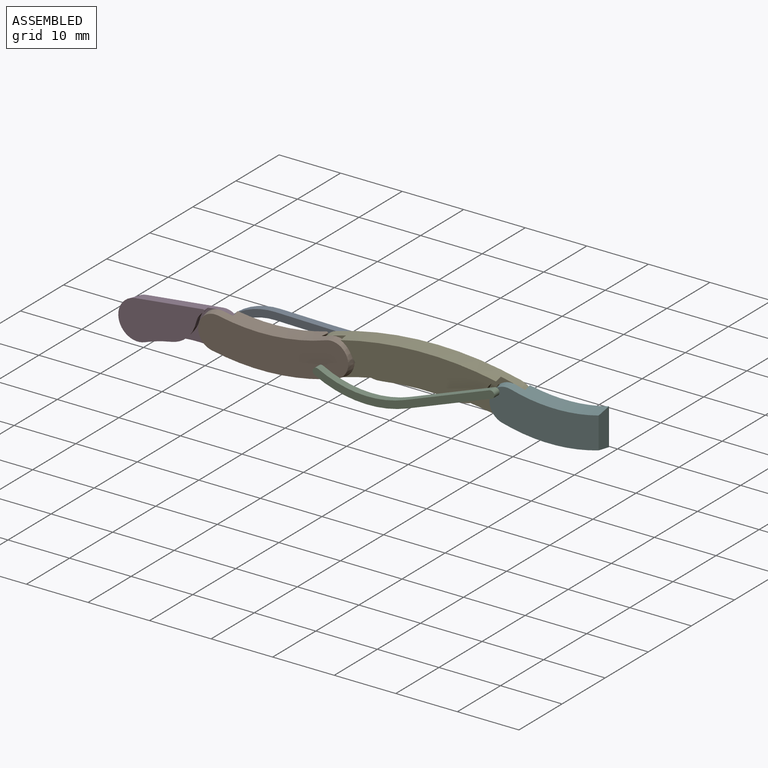
[diagram: assembled view]
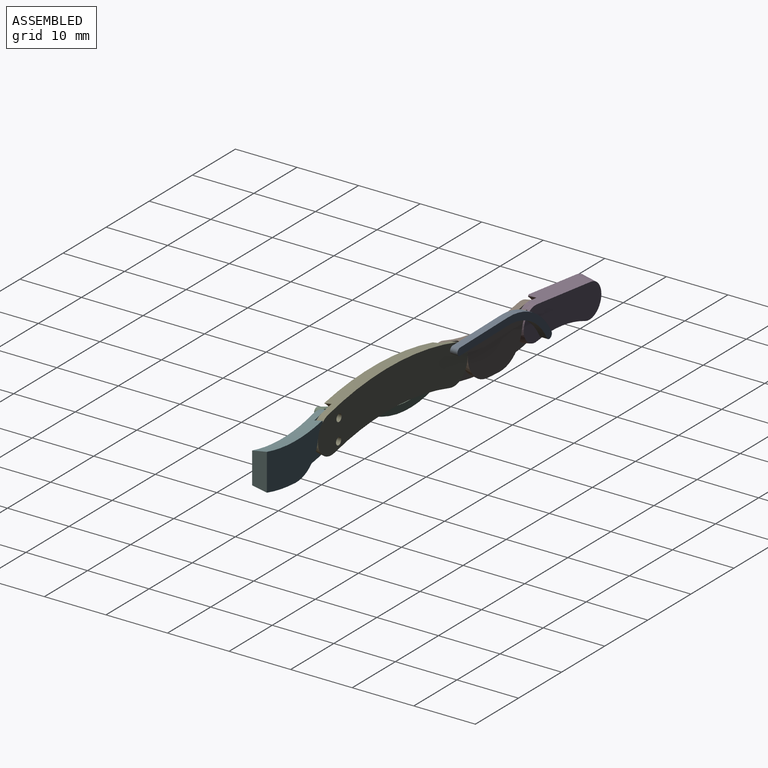
[diagram: assembled view, second angle]
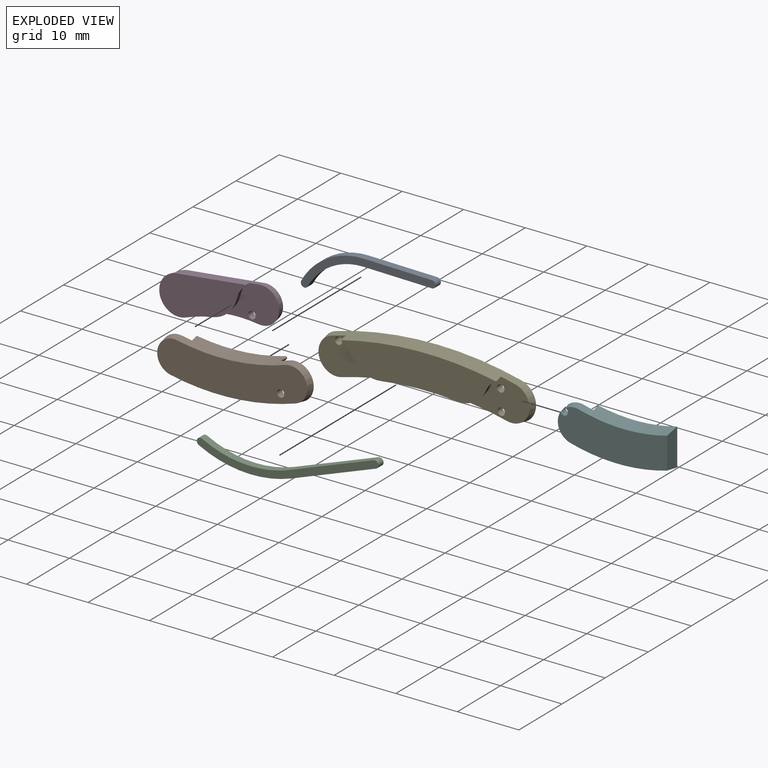
[diagram: exploded view]
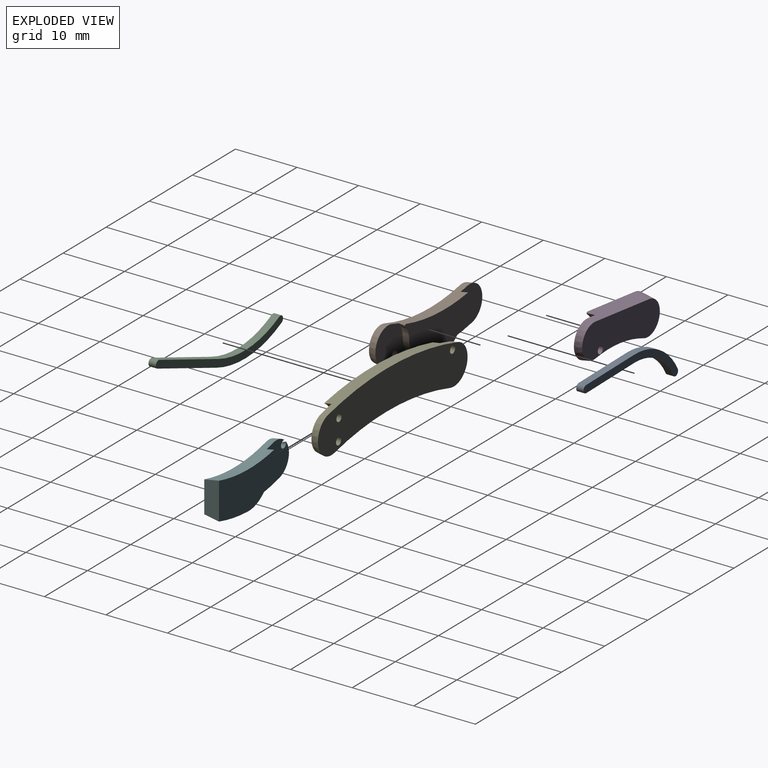
[diagram: exploded view, second angle]
ASSEMBLY  parts=6 mates=7
PART A: 8 faces, bbox 22.2x1.2x6.2 mm
  f0: cylinder r=11.3mm len=10.5mm, axis (0,1,0), area 14.8mm2, adj f1,f5,f6,f7
  f1: cylinder r=0.6mm len=1.2mm, axis (0,1,0), area 2.3mm2, adj f0,f2,f6,f7
  f2: cylinder r=10.1mm len=9.38mm, axis (0,1,0), area 13.2mm2, adj f1,f3,f6,f7
  f3: plane 11.08x1.2mm, normal (-0.08,0,-1), area 13.3mm2, adj f2,f4,f6,f7
  f4: cylinder r=0.6mm len=1.2mm, axis (0,1,0), area 2.3mm2, adj f3,f5,f6,f7
  f5: plane 11.08x1.2mm, normal (0.08,0,1), area 13.3mm2, adj f0,f4,f6,f7
  f6: plane 22.22x6.22mm, normal (0,-1,0), area 28.5mm2, adj f0,f1,f2,f3,f4,f5
  f7: plane 22.22x6.22mm, normal (0,1,0), area 28.5mm2, adj f0,f1,f2,f3,f4,f5
PART B: 15 faces, bbox 24.8x2.4x7.5 mm
  f0: cone r=3.16mm half-angle=10deg, axis (0,-1,0), area 3mm2, adj f3,f4,f10,f11,f13
  f1: cone r=39.76mm half-angle=10deg, axis (0,1,0), area 28.9mm2, adj f4,f5,f6,f8,f9,f10,f11,f12
  f2: cone r=3.16mm half-angle=10deg, axis (0,-1,0), area 3mm2, adj f3,f4,f8,f12,f14
  f3: cone r=33.45mm half-angle=10deg, axis (0,-1,0), area 39.2mm2, adj f0,f2,f4,f5,f6,f8,f9,f10
  f4: plane 14.86x7.1mm, normal (0,1,0), area 73.6mm2, adj f0,f1,f2,f3,f11,f12,f13,f14
  f5: plane 24.42x6.72mm, normal (0,-1,0), area 127.2mm2, adj f1,f3,f6,f7,f9
  f6: cone r=3.16mm half-angle=10deg, axis (0,1,0), area 10.9mm2, adj f1,f3,f5,f8
  f7: cylinder r=0.6mm len=1.2mm, axis (0,-1,0), area 4.5mm2, adj f5,f8
  f8: plane 10.9x7.11mm, normal (0,1,0), area 36.1mm2, adj f1,f2,f3,f6,f7,f12
  f9: cone r=3.16mm half-angle=10deg, axis (0,1,0), area 10.9mm2, adj f1,f3,f5,f10
  f10: plane 10.9x7.11mm, normal (0,1,0), area 37.2mm2, adj f0,f1,f3,f9,f11
  f11: cone r=5mm half-angle=10deg, axis (0,1,0), area 8.7mm2, adj f0,f1,f4,f10
  f12: cone r=5mm half-angle=10deg, axis (0,1,0), area 8.7mm2, adj f1,f2,f4,f8
  f13: cone r=0.2mm half-angle=10deg, axis (0,1,0), area 0.3mm2, adj f0,f3,f4
  f14: cone r=0.2mm half-angle=10deg, axis (0,1,0), area 0.3mm2, adj f2,f3,f4
PART C: 8 faces, bbox 29.6x1.2x6.8 mm
  f0: cylinder r=0.6mm len=1.2mm, axis (0,1,0), area 2.3mm2, adj f1,f5,f6,f7
  f1: cylinder r=18.81mm len=15.05mm, axis (0,1,0), area 18.7mm2, adj f0,f2,f6,f7
  f2: plane 13.85x4.68mm, normal (0.32,0,-0.95), area 17.5mm2, adj f1,f3,f6,f7
  f3: cylinder r=0.6mm len=1.2mm, axis (0,1,0), area 2.3mm2, adj f2,f4,f6,f7
  f4: plane 13.85x4.68mm, normal (-0.32,0,0.95), area 17.5mm2, adj f3,f5,f6,f7
  f5: cylinder r=17.61mm len=14.09mm, axis (0,1,0), area 17.5mm2, adj f0,f4,f6,f7
  f6: plane 29.62x6.83mm, normal (0,-1,0), area 36.7mm2, adj f0,f1,f2,f3,f4,f5
  f7: plane 29.62x6.83mm, normal (0,1,0), area 36.7mm2, adj f0,f1,f2,f3,f4,f5
PART D: 11 faces, bbox 18.7x2.4x6.3 mm
  f0: cone r=3.16mm half-angle=10deg, axis (0,-1,0), area 24.4mm2, adj f1,f3,f4,f5
  f1: cone r=21.24mm half-angle=10deg, axis (0,1,0), area 19.2mm2, adj f0,f4,f5,f7,f8,f9
  f2: cone r=3.16mm half-angle=10deg, axis (0,1,0), area 3mm2, adj f3,f4,f8,f9,f10
  f3: plane 12.63x2.4mm, normal (0,0.17,0.98), area 28.8mm2, adj f0,f2,f4,f5,f7,f8,f10
  f4: plane 14.4x6.32mm, normal (0,-1,0), area 67.9mm2, adj f0,f1,f2,f3,f9,f10
  f5: plane 18.1x5.47mm, normal (0,1,0), area 84.8mm2, adj f0,f1,f3,f6,f7
  f6: cylinder r=0.6mm len=1.2mm, axis (0,1,0), area 4.5mm2, adj f5,f8
  f7: cone r=3.16mm half-angle=10deg, axis (0,-1,0), area 11.8mm2, adj f1,f3,f5,f8
  f8: plane 10.41x5.89mm, normal (0,-1,0), area 33.3mm2, adj f1,f2,f3,f6,f7,f9
  f9: cone r=5mm half-angle=10deg, axis (0,-1,0), area 7.1mm2, adj f1,f2,f4,f8
  f10: cone r=0.2mm half-angle=10deg, axis (0,-1,0), area 0.3mm2, adj f2,f3,f4
PART E: 17 faces, bbox 34.7x2.4x8.2 mm
  f0: plane 1.2x0.42mm, normal (0.99,0,-0.12), area 0.3mm2, adj f3,f14,f16
  f1: plane 1.2x0.42mm, normal (-0.99,0,-0.12), area 0.3mm2, adj f3,f10,f15
  f2: cone r=3.58mm half-angle=10deg, axis (0,1,0), area 3.2mm2, adj f5,f6,f10,f15
  f3: cone r=51.75mm half-angle=10deg, axis (0,-1,0), area 48.2mm2, adj f0,f1,f6,f7,f9,f10,f11,f14
  f4: cone r=3.58mm half-angle=10deg, axis (0,1,0), area 3.2mm2, adj f5,f6,f14,f16
  f5: cone r=58.06mm half-angle=10deg, axis (0,1,0), area 67.9mm2, adj f2,f4,f6,f7,f9,f10,f11,f14
  f6: plane 25.24x5.87mm, normal (0,-1,0), area 113.9mm2, adj f2,f3,f4,f5,f15,f16
  f7: plane 34.74x8.19mm, normal (0,1,0), area 209.5mm2, adj f3,f5,f8,f9,f11,f12,f13
  f8: cylinder r=0.6mm len=1.2mm, axis (0,1,0), area 4.5mm2, adj f7,f10
  f9: cone r=3.16mm half-angle=10deg, axis (0,1,0), area 11.7mm2, adj f3,f5,f7,f10
  f10: plane 10.97x6.38mm, normal (0,-1,0), area 38mm2, adj f1,f2,f3,f5,f8,f9,f15
  f11: cone r=3.16mm half-angle=10deg, axis (0,1,0), area 11.7mm2, adj f3,f5,f7,f14
  f12: cylinder r=0.6mm len=1.2mm, axis (0,1,0), area 4.5mm2, adj f7,f14
  f13: cylinder r=0.6mm len=1.2mm, axis (0,1,0), area 4.5mm2, adj f7,f14
  f14: plane 10.97x6.38mm, normal (0,-1,0), area 36.9mm2, adj f0,f3,f4,f5,f11,f12,f13,f16
  f15: cone r=4.58mm half-angle=10deg, axis (0,-1,0), area 6.9mm2, adj f1,f2,f6,f10
  f16: cone r=4.58mm half-angle=10deg, axis (0,-1,0), area 6.9mm2, adj f0,f4,f6,f14
PART F: 12 faces, bbox 18.1x2.4x7.1 mm
  f0: cone r=3.16mm half-angle=10deg, axis (0,1,0), area 3.1mm2, adj f1,f6,f8,f9
  f1: cone r=27.4mm half-angle=10deg, axis (0,-1,0), area 33.3mm2, adj f0,f2,f4,f5,f6,f9,f11
  f2: cone r=3.16mm half-angle=10deg, axis (0,-1,0), area 2.9mm2, adj f1,f5,f9,f10,f11
  f3: cone r=29.85mm half-angle=10deg, axis (0,1,0), area 27.7mm2, adj f4,f5,f6,f7,f9,f10
  f4: plane 6x2.4mm, normal (1,0,0), area 13.3mm2, adj f1,f3,f5,f6
  f5: plane 12.97x7.09mm, normal (0,1,0), area 68.9mm2, adj f1,f2,f3,f4,f10,f11
  f6: plane 17.73x6.38mm, normal (0,-1,0), area 91.1mm2, adj f0,f1,f3,f4,f7,f8
  f7: cone r=3.16mm half-angle=10deg, axis (0,1,0), area 6.8mm2, adj f3,f6,f8,f9
  f8: cylinder r=0.6mm len=1.2mm, axis (0,-1,0), area 3.4mm2, adj f0,f6,f7,f9
  f9: plane 11.28x6.8mm, normal (0,1,0), area 36.6mm2, adj f0,f1,f2,f3,f7,f8,f10
  f10: cone r=5mm half-angle=10deg, axis (0,1,0), area 8.9mm2, adj f2,f3,f5,f9
  f11: cone r=0.2mm half-angle=10deg, axis (0,1,0), area 0.3mm2, adj f1,f2,f5
PLACE A rot(axis=(0,-1,0),3.7deg) t=(9.69,-2.42,0.85)mm
PLACE B rot(axis=(0,-1,0),3.5deg) t=(9.6,-11.02,0.76)mm
PLACE C rot(axis=(0,-1,0),1.8deg) t=(9.7,-16.02,-0.16)mm
PLACE D rot(axis=(0,-1,0),6.7deg) t=(9.37,-8.62,3.36)mm
PLACE E rot(axis=(0,-1,0),1.6deg) t=(9.65,-8.62,-0.21)mm
PLACE F rot(axis=(0,-1,0),0deg) t=(9.65,-6.02,-0.21)mm fixed
MATE revolute B.f7 <-> C.f0  axis (0,-1,0) through (-20.35,-11.02,-2.78)mm
MATE revolute D.f6 <-> A.f1  axis (0,1,0) through (-39.16,-8.62,-4.03)mm
MATE revolute F.f8 <-> C.f3  axis (0,-1,0) through (7.95,-11.02,1.48)mm
MATE revolute E.f8 <-> A.f4  axis (0,1,0) through (-18.45,-8.62,1.4)mm
MATE revolute E.f4 <-> F.f2  axis (0,-1,0) through (9.65,-9.82,-0.21)mm
MATE revolute D.f2 <-> B.f0  axis (0,-1,0) through (-37.68,-9.82,-2.15)mm
MATE revolute B.f2 <-> E.f2  axis (0,1,0) through (-18.76,-9.82,-0.98)mm
